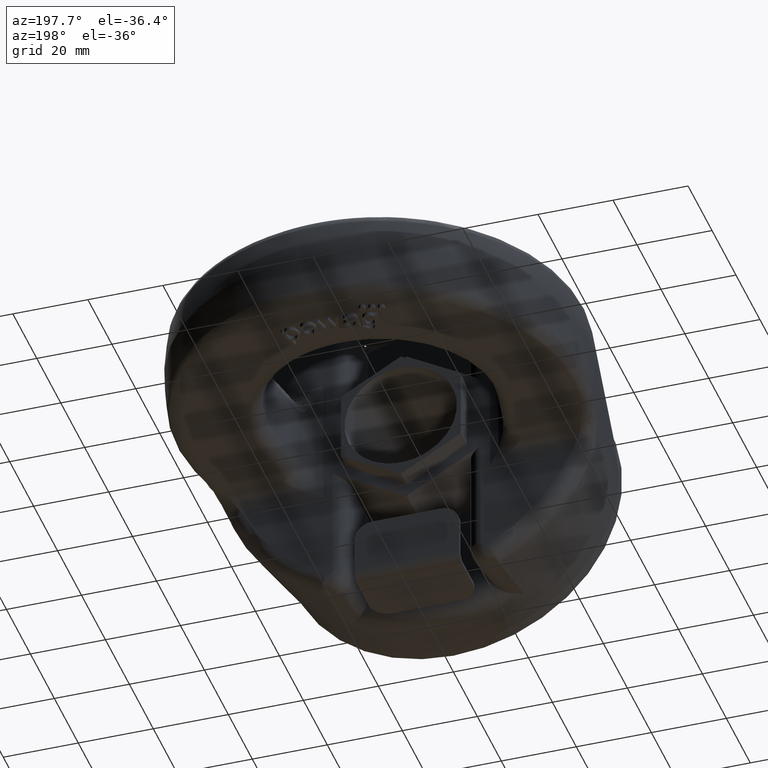
[diagram: clean part render]
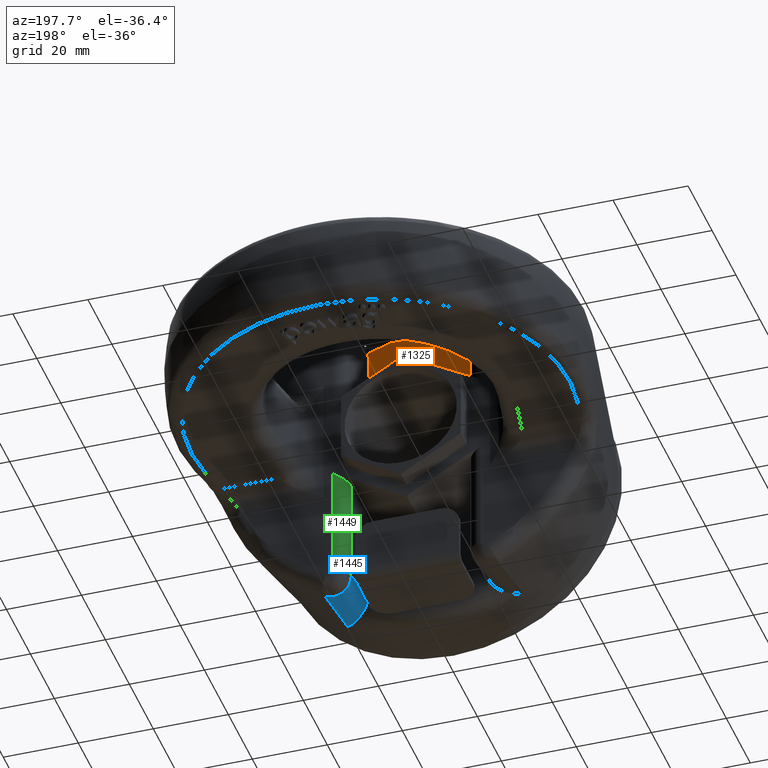
[diagram: same view with three faces highlighted in distinct colors, each labeled with its STEP entity id]
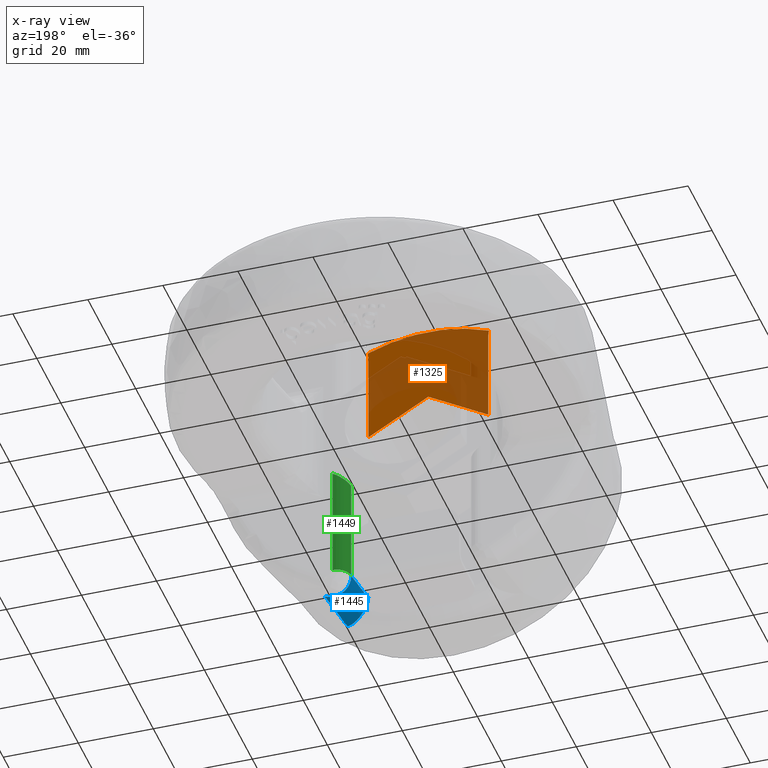
[diagram: x-ray of the same camera — body ghosted, the three highlighted faces saturated]
A machine part, auxiliary view with three faces highlighted in distinct colors.
The next image is the same camera in x-ray (body ghosted, the three faces saturated) — at least one of them is partly hidden behind the body in this view.
Their STEP definitions:

[orange] entity #1325 — the highlighted planar face has unit normal (-0, 1, 0).
#1106=FACE_OUTER_BOUND('',#1838,.T.);
#1325=ADVANCED_FACE('',(#1106),#1565,.T.);
#1565=PLANE('',#5109);
#1681=CIRCLE('',#5108,42.3714390204824);
#1838=EDGE_LOOP('',(#2757,#2758,#2759,#2760,#2761,#2762,#2763));
#2133=LINE('',#6543,#2403);
#2134=LINE('',#6557,#2404);
#2135=LINE('',#6559,#2405);
#2136=LINE('',#6561,#2406);
#2403=VECTOR('',#5418,1.);
#2404=VECTOR('',#5423,1.);
#2405=VECTOR('',#5424,1.);
#2406=VECTOR('',#5425,1.);
#2757=ORIENTED_EDGE('',*,*,#4312,.T.);
#2758=ORIENTED_EDGE('',*,*,#4313,.T.);
#2759=ORIENTED_EDGE('',*,*,#4314,.T.);
#2760=ORIENTED_EDGE('',*,*,#4315,.T.);
#2761=ORIENTED_EDGE('',*,*,#4316,.F.);
#2762=ORIENTED_EDGE('',*,*,#4317,.F.);
#2763=ORIENTED_EDGE('',*,*,#4318,.F.);
#3926=VERTEX_POINT('',#6532);
#3928=VERTEX_POINT('',#6542);
#3929=VERTEX_POINT('',#6549);
#3930=VERTEX_POINT('',#6551);
#3931=VERTEX_POINT('',#6556);
#3932=VERTEX_POINT('',#6558);
#3933=VERTEX_POINT('',#6560);
#4312=EDGE_CURVE('',#3926,#3928,#2133,.T.);
#4313=EDGE_CURVE('',#3928,#3929,#4864,.T.);
#4314=EDGE_CURVE('',#3929,#3930,#1681,.T.);
#4315=EDGE_CURVE('',#3930,#3931,#4865,.T.);
#4316=EDGE_CURVE('',#3932,#3931,#2134,.T.);
#4317=EDGE_CURVE('',#3933,#3932,#2135,.T.);
#4318=EDGE_CURVE('',#3926,#3933,#2136,.T.);
#4864=B_SPLINE_CURVE_WITH_KNOTS('',3,(#6545,#6546,#6547,#6548),
 .UNSPECIFIED.,.F.,.F.,(4,4),(0.,1.),.UNSPECIFIED.);
#4865=B_SPLINE_CURVE_WITH_KNOTS('',3,(#6552,#6553,#6554,#6555),
 .UNSPECIFIED.,.F.,.F.,(4,4),(0.,1.),.UNSPECIFIED.);
#5108=AXIS2_PLACEMENT_3D('',#6550,#5421,#5422);
#5109=AXIS2_PLACEMENT_3D('',#6562,#5426,#5427);
#5418=DIRECTION('',(0.,0.,1.));
#5421=DIRECTION('',(-1.0842021724855E-16,1.,0.));
#5422=DIRECTION('',(-1.,-8.18817352480402E-17,0.));
#5423=DIRECTION('',(0.,0.,1.));
#5424=DIRECTION('',(0.866025403784439,9.38946624210725E-17,-0.499999999999999));
#5425=DIRECTION('',(0.866025403784439,9.38946624210725E-17,0.5));
#5426=DIRECTION('',(-1.0842021724855E-16,1.,0.));
#5427=DIRECTION('',(-1.,-1.07552855510562E-16,0.));
#6532=CARTESIAN_POINT('',(-16.,21.,12.7017059221718));
#6542=CARTESIAN_POINT('',(-16.,21.,37.8869375606471));
#6543=CARTESIAN_POINT('',(-16.,21.,60.5000000000001));
#6545=CARTESIAN_POINT('',(-16.,21.,37.8869375606471));
#6546=CARTESIAN_POINT('',(-15.9999999999995,21.,38.3175759541584));
#6547=CARTESIAN_POINT('',(-16.0539259390967,21.,38.7514794768523));
#6548=CARTESIAN_POINT('',(-16.1595563880712,21.,39.1689619725518));
#6549=CARTESIAN_POINT('',(-16.1595563880712,21.,39.1689619725518));
#6550=CARTESIAN_POINT('',(-1.56420339731718E-13,21.,0.));
#6551=CARTESIAN_POINT('',(16.1595563880711,21.,39.1689619725517));
#6552=CARTESIAN_POINT('',(16.1595563880711,21.,39.1689619725517));
#6553=CARTESIAN_POINT('',(16.0539259390967,21.,38.7514794768522));
#6554=CARTESIAN_POINT('',(15.9999999999995,21.,38.3175759541583));
#6555=CARTESIAN_POINT('',(16.,21.,37.886937560647));
#6556=CARTESIAN_POINT('',(16.,21.,37.886937560647));
#6557=CARTESIAN_POINT('',(16.,21.,60.5000000000001));
#6558=CARTESIAN_POINT('',(16.,21.,12.7017059221718));
#6559=CARTESIAN_POINT('',(-28.6972684644793,21.,38.5076859021798));
#6560=CARTESIAN_POINT('',(-8.67361737988404E-16,21.,21.9393102292058));
#6561=CARTESIAN_POINT('',(4.69726846447928,21.,24.6512794416288));
#6562=CARTESIAN_POINT('',(-16.,21.,60.5000000000001));

[blue] entity #1445 — the highlighted face is a freeform B-spline surface patch.
#1037=(
BOUNDED_SURFACE()
B_SPLINE_SURFACE(3,2,((#8416,#8417,#8418),(#8419,#8420,#8421),(#8422,#8423,
#8424),(#8425,#8426,#8427)),.UNSPECIFIED.,.F.,.F.,.F.)
B_SPLINE_SURFACE_WITH_KNOTS((4,4),(3,3),(0.,1.),(0.,1.),.UNSPECIFIED.)
GEOMETRIC_REPRESENTATION_ITEM()
RATIONAL_B_SPLINE_SURFACE(((1.,0.525489037623959,1.),(1.,0.519727561683276,
1.),(1.,0.513415124020675,1.),(1.,0.506345720582205,1.)))
REPRESENTATION_ITEM('')
SURFACE()
);
#1212=FACE_OUTER_BOUND('',#1979,.T.);
#1445=ADVANCED_FACE('',(#1212),#1037,.T.);
#1979=EDGE_LOOP('',(#3354,#3355,#3356,#3357,#3358));
#3354=ORIENTED_EDGE('',*,*,#4609,.F.);
#3355=ORIENTED_EDGE('',*,*,#4626,.T.);
#3356=ORIENTED_EDGE('',*,*,#4325,.F.);
#3357=ORIENTED_EDGE('',*,*,#4627,.F.);
#3358=ORIENTED_EDGE('',*,*,#4611,.F.);
#3940=VERTEX_POINT('',#6589);
#3941=VERTEX_POINT('',#6597);
#4130=VERTEX_POINT('',#8327);
#4131=VERTEX_POINT('',#8335);
#4132=VERTEX_POINT('',#8342);
#4325=EDGE_CURVE('',#3940,#3941,#4869,.T.);
#4609=EDGE_CURVE('',#4130,#4131,#5000,.T.);
#4611=EDGE_CURVE('',#4131,#4132,#5001,.T.);
#4626=EDGE_CURVE('',#4130,#3941,#5006,.T.);
#4627=EDGE_CURVE('',#4132,#3940,#5007,.T.);
#4869=B_SPLINE_CURVE_WITH_KNOTS('',3,(#6590,#6591,#6592,#6593,#6594,#6595,
#6596),.UNSPECIFIED.,.F.,.F.,(4,3,4),(0.,0.725608842680321,1.),
 .UNSPECIFIED.);
#5000=B_SPLINE_CURVE_WITH_KNOTS('',3,(#8328,#8329,#8330,#8331,#8332,#8333,
#8334),.UNSPECIFIED.,.F.,.F.,(4,3,4),(0.,0.358937415519167,1.),
 .UNSPECIFIED.);
#5001=B_SPLINE_CURVE_WITH_KNOTS('',3,(#8338,#8339,#8340,#8341),
 .UNSPECIFIED.,.F.,.F.,(4,4),(0.,1.),.UNSPECIFIED.);
#5006=B_SPLINE_CURVE_WITH_KNOTS('',3,(#8402,#8403,#8404,#8405,#8406,#8407),
 .UNSPECIFIED.,.F.,.F.,(4,2,4),(0.,0.5,1.),.UNSPECIFIED.);
#5007=B_SPLINE_CURVE_WITH_KNOTS('',3,(#8408,#8409,#8410,#8411,#8412,#8413,
#8414,#8415),.UNSPECIFIED.,.F.,.F.,(4,2,2,4),(0.,0.25,0.5,1.),
 .UNSPECIFIED.);
#6589=CARTESIAN_POINT('',(23.4348671038829,15.0702767123825,-41.0683134206006));
#6590=CARTESIAN_POINT('',(23.4348671038829,15.0702767123825,-41.0683134206006));
#6591=CARTESIAN_POINT('',(23.3836612229135,19.7788926242467,-42.1234858050389));
#6592=CARTESIAN_POINT('',(23.3356433281711,24.490437175852,-43.1657965842281));
#6593=CARTESIAN_POINT('',(23.2902884767788,29.2041955859232,-44.1980267899123));
#6594=CARTESIAN_POINT('',(23.2731373688547,30.9867210873232,-44.5883685310198));
#6595=CARTESIAN_POINT('',(23.2563683013306,32.7695684207995,-44.9772599208965));
#6596=CARTESIAN_POINT('',(23.2399570885834,34.5527075342869,-45.3648209774316));
#6597=CARTESIAN_POINT('',(23.2399570885834,34.5527075342869,-45.3648209774316));
#8327=CARTESIAN_POINT('',(16.0000000000001,35.25,-40.9429551993896));
#8328=CARTESIAN_POINT('',(16.0000000000001,35.25,-40.9429551993896));
#8329=CARTESIAN_POINT('',(16.0000000000001,33.5444294868033,-40.5802040115892));
#8330=CARTESIAN_POINT('',(16.0000000000001,31.8390628172032,-40.2164928435045));
#8331=CARTESIAN_POINT('',(16.0000000000001,30.1339188735408,-39.8517417898696));
#8332=CARTESIAN_POINT('',(16.0000000000001,27.0885307872894,-39.2002961935515));
#8333=CARTESIAN_POINT('',(16.0000000000001,24.0438484352039,-38.5455396137497));
#8334=CARTESIAN_POINT('',(16.0000000000001,21.,-37.8869375606471));
#8335=CARTESIAN_POINT('',(16.0000000000001,21.,-37.8869375606471));
#8338=CARTESIAN_POINT('',(16.0000000000001,21.,-37.8869375606471));
#8339=CARTESIAN_POINT('',(15.9999999999996,21.,-38.3175759541584));
#8340=CARTESIAN_POINT('',(16.0539259390968,21.,-38.7514794768523));
#8341=CARTESIAN_POINT('',(16.1595563880712,21.,-39.1689619725518));
#8342=CARTESIAN_POINT('',(16.1595563880712,21.,-39.1689619725518));
#8402=CARTESIAN_POINT('',(16.0000000000001,35.25,-40.9429551993896));
#8403=CARTESIAN_POINT('',(16.0000000000001,34.9831857185387,-42.6345348458924));
#8404=CARTESIAN_POINT('',(16.920719794482,34.7263952044167,-44.2631365447325));
#8405=CARTESIAN_POINT('',(19.8209223906017,34.4467835814695,-46.0366824366307));
#8406=CARTESIAN_POINT('',(21.7093098508909,34.4330957886956,-46.1235233148302));
#8407=CARTESIAN_POINT('',(23.2399570885827,34.5527075342876,-45.3648209774321));
#8408=CARTESIAN_POINT('',(16.1595563880712,21.,-39.1689619725518));
#8409=CARTESIAN_POINT('',(16.3887777193506,21.,-40.0749118608576));
#8410=CARTESIAN_POINT('',(16.8912002808779,20.7204753166996,-40.8742464311503));
#8411=CARTESIAN_POINT('',(18.13788375337,19.8447086469017,-41.9249094723996));
#8412=CARTESIAN_POINT('',(18.8503207933286,19.2801280043012,-42.1951667766381));
#8413=CARTESIAN_POINT('',(20.9760039058125,17.4965742308203,-42.4632574028186));
#8414=CARTESIAN_POINT('',(22.3243060963746,16.2386217969124,-41.9566031672132));
#8415=CARTESIAN_POINT('',(23.4348671038829,15.0702767123825,-41.0683134206006));
#8416=CARTESIAN_POINT('',(23.2386127133706,34.6988666073583,-45.3965851835824));
#8417=CARTESIAN_POINT('',(16.0000000000001,33.945154738815,-48.9418085094302));
#8418=CARTESIAN_POINT('',(16.0000000000001,35.6285898949759,-41.0234595590436));
#8419=CARTESIAN_POINT('',(23.2991485308832,28.1135231845382,-43.9655576016768));
#8420=CARTESIAN_POINT('',(16.0000000000001,27.2494775176289,-47.6450257645025));
#8421=CARTESIAN_POINT('',(16.0000000000001,29.0432494112134,-39.6234210213904));
#8422=CARTESIAN_POINT('',(23.3645320693359,21.5310874415392,-42.5164544210187));
#8423=CARTESIAN_POINT('',(16.0000000000001,20.6070325279837,-46.3590122169445));
#8424=CARTESIAN_POINT('',(16.0000000000001,22.4608152488844,-38.2093215077524));
#8425=CARTESIAN_POINT('',(23.436140112481,14.9532788950035,-41.0420921147478));
#8426=CARTESIAN_POINT('',(16.0000000000001,14.0698701699408,-45.095811135913));
#8427=CARTESIAN_POINT('',(16.0000000000001,15.8830021826211,-36.7758483382129));

[green] entity #1449 — the highlighted cylindrical surface (edge-blend (fillet) strip) has radius 3.75 mm, axis along (0, 0, -1).
#1063=ELLIPSE('',#5247,4.33012701892219,3.75);
#1084=CYLINDRICAL_SURFACE('',#5257,3.75);
#1216=FACE_OUTER_BOUND('',#1983,.T.);
#1449=ADVANCED_FACE('',(#1216),#1084,.T.);
#1727=CIRCLE('',#5256,3.75);
#1983=EDGE_LOOP('',(#3373,#3374,#3375,#3376));
#2144=LINE('',#6714,#2414);
#2262=LINE('',#8326,#2560);
#2414=VECTOR('',#5475,1.);
#2560=VECTOR('',#5839,1.);
#3373=ORIENTED_EDGE('',*,*,#4623,.F.);
#3374=ORIENTED_EDGE('',*,*,#4355,.F.);
#3375=ORIENTED_EDGE('',*,*,#4634,.F.);
#3376=ORIENTED_EDGE('',*,*,#4608,.F.);
#3967=VERTEX_POINT('',#6713);
#3968=VERTEX_POINT('',#6715);
#4128=VERTEX_POINT('',#8324);
#4130=VERTEX_POINT('',#8327);
#4355=EDGE_CURVE('',#3967,#3968,#2144,.T.);
#4608=EDGE_CURVE('',#4128,#4130,#2262,.T.);
#4623=EDGE_CURVE('',#3968,#4128,#1063,.T.);
#4634=EDGE_CURVE('',#4130,#3967,#1727,.T.);
#5247=AXIS2_PLACEMENT_3D('',#8374,#5864,#5865);
#5256=AXIS2_PLACEMENT_3D('',#8449,#5882,#5883);
#5257=AXIS2_PLACEMENT_3D('',#8450,#5884,#5885);
#5475=DIRECTION('',(-2.34291072916505E-15,0.,1.));
#5839=DIRECTION('',(2.34291072916505E-15,0.,-1.));
#5864=DIRECTION('',(-0.500000000000002,0.,0.866025403784438));
#5865=DIRECTION('',(-0.866025403784438,0.,-0.500000000000002));
#5882=DIRECTION('',(2.34291072916505E-15,0.,-1.));
#5883=DIRECTION('',(-1.,0.,-1.85037170770859E-15));
#5884=DIRECTION('',(2.34291072916505E-15,0.,-1.));
#5885=DIRECTION('',(-1.,0.,-1.85037170770859E-15));
#6713=CARTESIAN_POINT('',(19.7500000000001,39.,-40.9429551993896));
#6714=CARTESIAN_POINT('',(19.7500000000001,39.,-60.5));
#6715=CARTESIAN_POINT('',(19.75,39.,-10.5366424127106));
#8324=CARTESIAN_POINT('',(16.,35.25,-12.7017059221717));
#8326=CARTESIAN_POINT('',(16.0000000000001,35.25,-60.5));
#8327=CARTESIAN_POINT('',(16.0000000000001,35.25,-40.9429551993896));
#8374=CARTESIAN_POINT('',(19.75,35.25,-10.5366424127106));
#8449=CARTESIAN_POINT('',(19.7500000000001,35.25,-40.9429551993896));
#8450=CARTESIAN_POINT('',(19.7500000000001,35.25,-60.5));